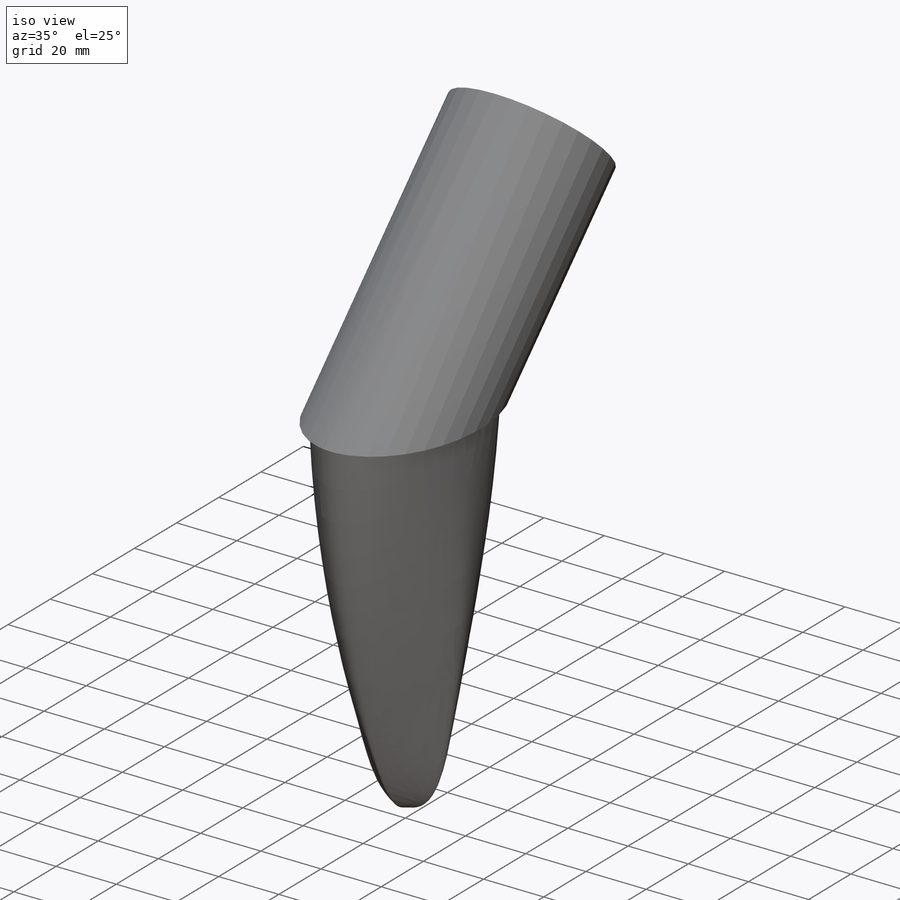
[diagram: iso view]
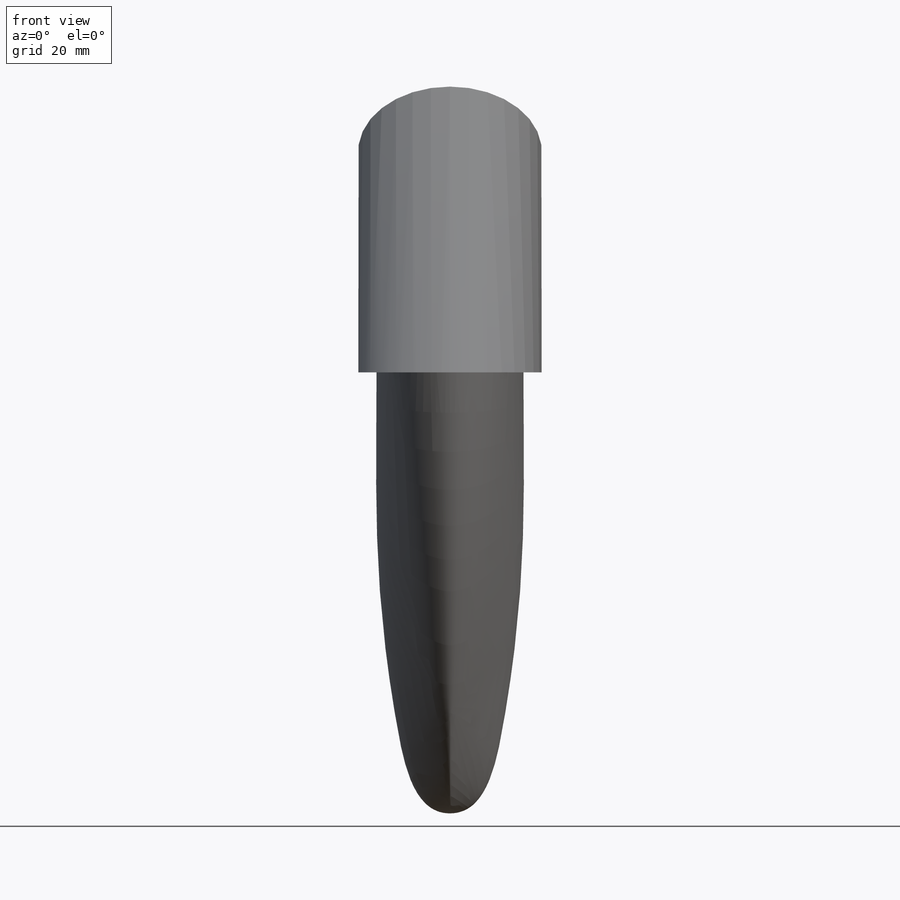
[diagram: front view]
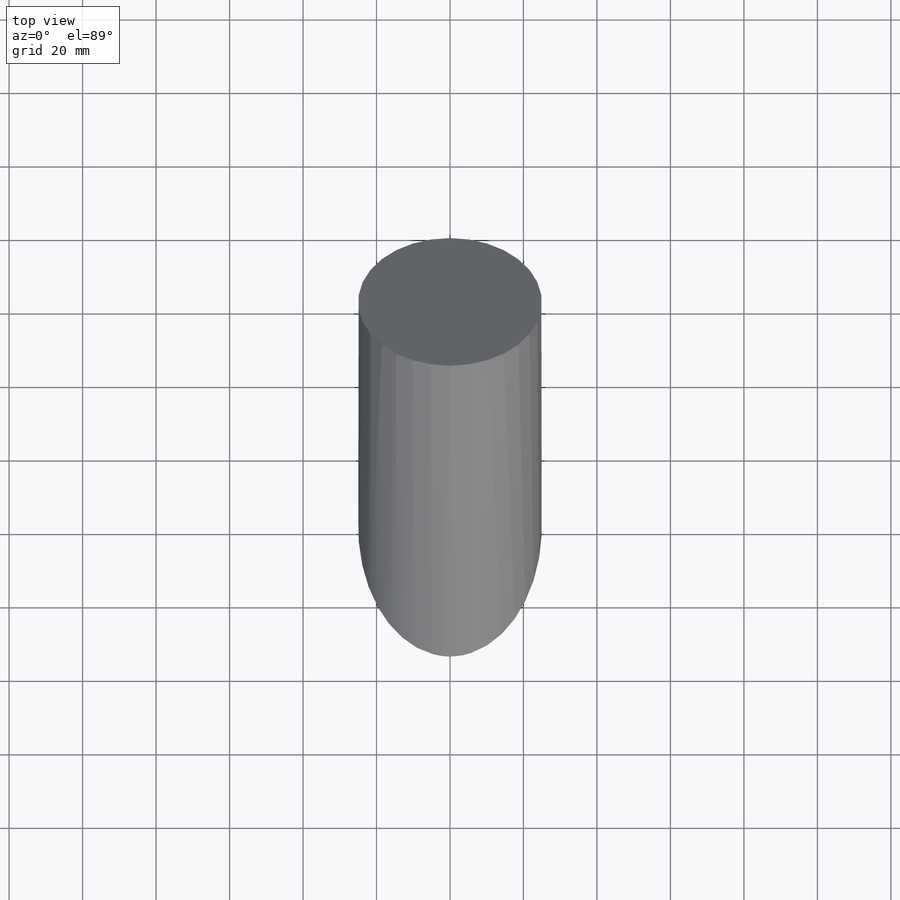
[diagram: top view]
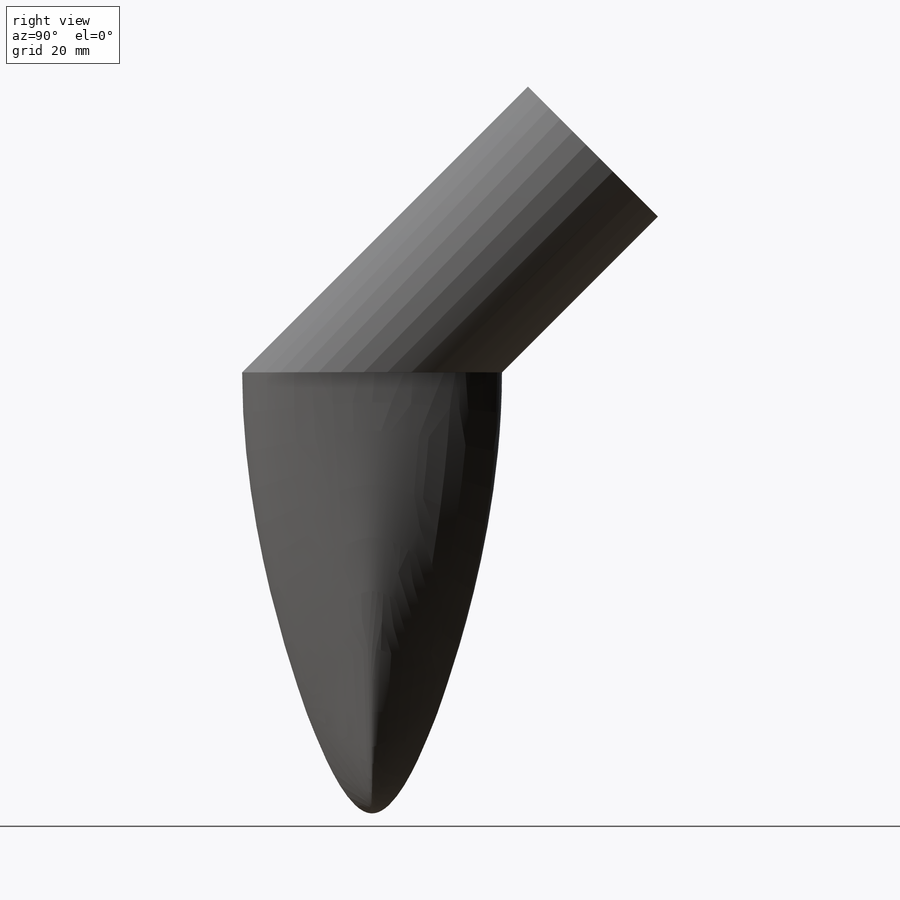
[diagram: right view]
SOLIDWORKS PART (.sldprt)
format: sldprt  version: not decoded by parser v0  size: 311,808 bytes
history: native  units: mm
features: sketch x8, plane x5, material x1, extrude x1, boolean_combine x1 (+9 scaffold rows collapsed)
feature tree (25):
  scaffold x9  (default folders/planes/origin — collapsed)
  material  "Material <nicht festgelegt>"
  plane  "Ebene vorne"
  plane  "Ebene oben"
  plane  "Ebene rechts"
  sketch  "Skizze1"  dims[c1.D1=~19.232587mm c1.D2=60.0mm c2.D1=~19.232587mm c3.D1=45.0deg c3.D3=50.0mm c3.D4=~99.267039mm c4.D4=~39.935451deg c5.D4=~17.67767mm c5.D5=~32.32233mm c5.D3=25.0mm c6.D4=25.0mm c6.D5=60.0mm c6.D1=~99.267039mm c7.D1=45.0deg c7.D3=25.0mm c7.D4=120.0mm]
  sketch  "Skizze2"  dims[c1.D1=120.0mm c1.D2=~16.665937mm c1.D3=~35.355339mm c1.D4=~16.665937mm c1.D5=~35.355339mm c2.D2=~16.665937mm c2.D3=~35.355339mm c2.D4=~95.526701mm]
  sketch  "Skizze3"  dims[c1.D1=20.0mm c1.D2=20.0mm c2.D1=20.0mm]
  plane  "Ebene1"
  sketch  "Skizze4"  dims[D1=50.0mm]
  extrude  "Aufsatz-Linear austragen1"  [1 undecoded]
  plane  "Ebene2"
  sketch  "Skizze5"  dims[D1=~14.536565mm D2=20.0mm]
  sketch  "Skizze6"
  sketch  "Skizze7"  dims[D1=20.0mm D2=120.0mm]
  sketch  "Skizze8"
  boolean_combine  "Kombinieren1"
decode coverage: 6 of 10 modeling features carry decoded parameters
note: ~ marks probable driven/reference dimensions
note: 1 parameter value undecoded
note: suppression state not decoded; provenance and decode notes live in map.json
